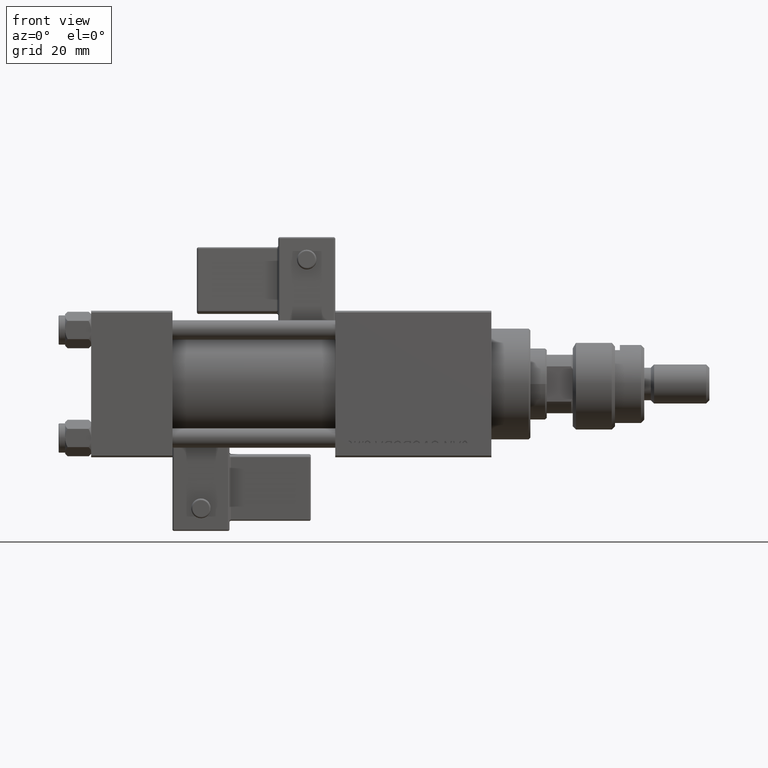
[diagram: clean part render]
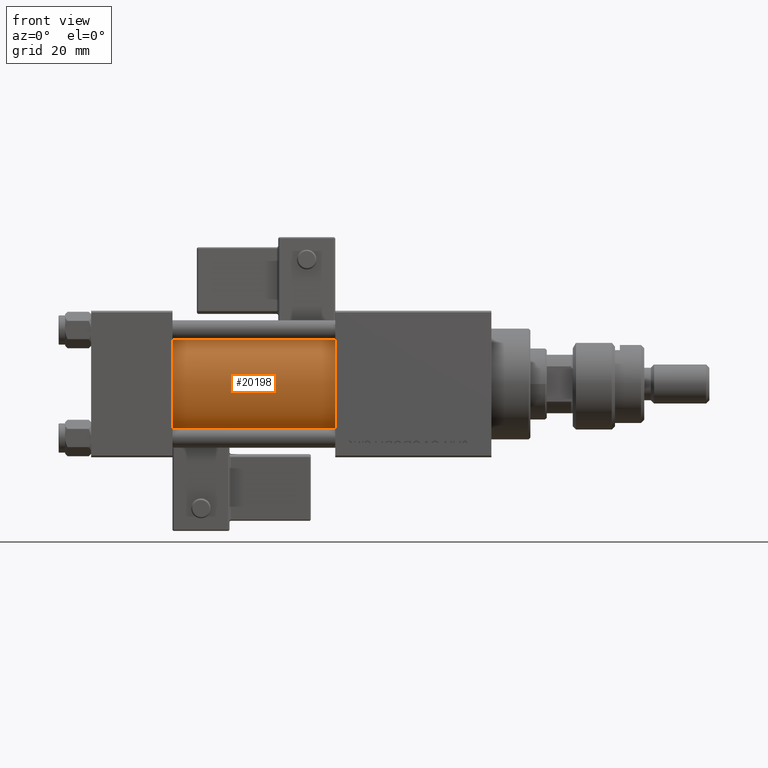
[diagram: same view with one face highlighted and labeled with its STEP entity id]
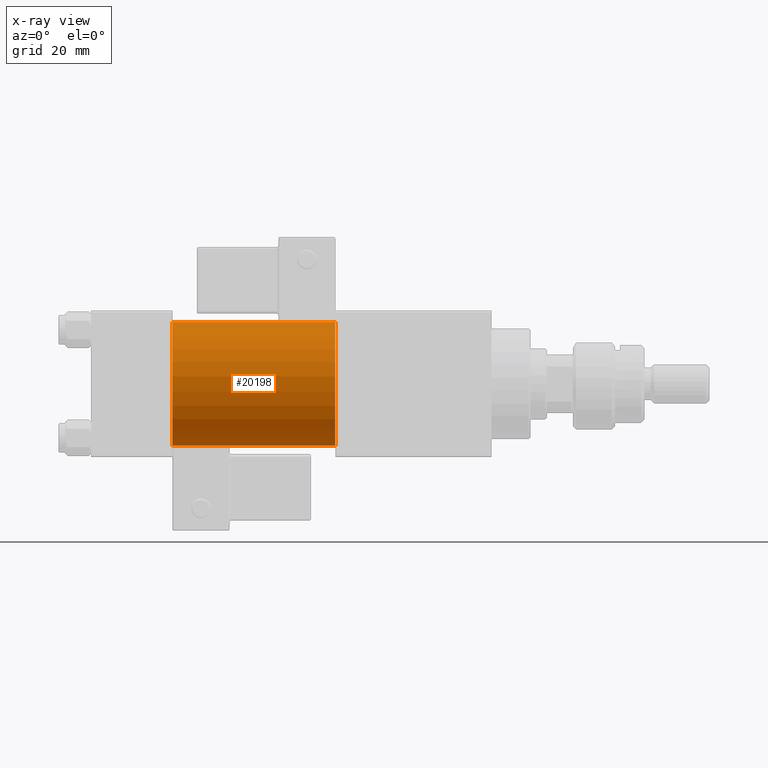
[diagram: x-ray of the same camera — body ghosted, the highlighted face saturated]
A machine part, front view. The second image highlights one B-rep face of the part: STEP entity #20198.
The next image is the same camera in x-ray: the body ghosted, the highlighted face saturated — about 0% of this face is hidden behind the body in this view.
In plain terms, the highlighted cylindrical surface (partial cylindrical patch) has radius 19 mm, axis along (-1, -0, -0).
Its self-contained STEP definition (entity closure, byte-faithful):
#2104 = CARTESIAN_POINT ( 'NONE',  ( 75.00000000000001421, -2.602085213965210642E-15, 19.00000000000000000 ) ) ;
#2373 = EDGE_CURVE ( 'NONE', #31629, #32949, #9510, .T. ) ;
#4933 = DIRECTION ( 'NONE',  ( -1.000000000000000000, -0.000000000000000000, -0.000000000000000000 ) ) ;
#5073 = AXIS2_PLACEMENT_3D ( 'NONE', #30662, #9977, #52133 ) ;
#5924 = CIRCLE ( 'NONE', #45848, 19.00000000000000000 ) ;
#6450 = CYLINDRICAL_SURFACE ( 'NONE', #5073, 19.00000000000000000 ) ;
#6528 = ORIENTED_EDGE ( 'NONE', *, *, #50005, .F. ) ;
#6804 = CARTESIAN_POINT ( 'NONE',  ( 75.00000000000001421, -2.752562955852396712E-16, -19.00000000000000000 ) ) ;
#9510 = CIRCLE ( 'NONE', #39916, 19.00000000000000000 ) ;
#9868 = DIRECTION ( 'NONE',  ( 1.000000000000000000, 0.000000000000000000, 0.000000000000000000 ) ) ;
#9977 = DIRECTION ( 'NONE',  ( -1.000000000000000000, -0.000000000000000000, -0.000000000000000000 ) ) ;
#10042 = DIRECTION ( 'NONE',  ( 1.000000000000000000, -0.000000000000000000, 0.000000000000000000 ) ) ;
#13567 = ORIENTED_EDGE ( 'NONE', *, *, #2373, .F. ) ;
#14376 = CARTESIAN_POINT ( 'NONE',  ( 25.00000000000000000, -2.752562955852396712E-16, -19.00000000000000000 ) ) ;
#16701 = VECTOR ( 'NONE', #4933, 1000.000000000000000 ) ;
#18699 = FACE_OUTER_BOUND ( 'NONE', #41120, .T. ) ;
#19810 = EDGE_CURVE ( 'NONE', #30204, #52209, #5924, .T. ) ;
#20077 = ORIENTED_EDGE ( 'NONE', *, *, #19810, .T. ) ;
#20198 = ADVANCED_FACE ( 'NONE', ( #18699 ), #6450, .T. ) ;
#21601 = CARTESIAN_POINT ( 'NONE',  ( 75.00000000000001421, -2.602085213965210642E-15, 0.000000000000000000 ) ) ;
#22064 = LINE ( 'NONE', #42174, #16701 ) ;
#22302 = DIRECTION ( 'NONE',  ( 0.000000000000000000, 0.000000000000000000, 1.000000000000000000 ) ) ;
#28584 = CARTESIAN_POINT ( 'NONE',  ( 25.00000000000000000, -2.602085213965210642E-15, 19.00000000000000000 ) ) ;
#30204 = VERTEX_POINT ( 'NONE', #28584 ) ;
#30662 = CARTESIAN_POINT ( 'NONE',  ( 75.00000000000001421, -2.602085213965210642E-15, 0.000000000000000000 ) ) ;
#31629 = VERTEX_POINT ( 'NONE', #36627 ) ;
#32949 = VERTEX_POINT ( 'NONE', #6804 ) ;
#33289 = ORIENTED_EDGE ( 'NONE', *, *, #53377, .T. ) ;
#36627 = CARTESIAN_POINT ( 'NONE',  ( 75.00000000000001421, -2.602085213965210642E-15, 19.00000000000000000 ) ) ;
#38181 = DIRECTION ( 'NONE',  ( 0.000000000000000000, 0.000000000000000000, -1.000000000000000000 ) ) ;
#39621 = LINE ( 'NONE', #2104, #49831 ) ;
#39916 = AXIS2_PLACEMENT_3D ( 'NONE', #21601, #9868, #38181 ) ;
#41120 = EDGE_LOOP ( 'NONE', ( #6528, #13567, #33289, #20077 ) ) ;
#42174 = CARTESIAN_POINT ( 'NONE',  ( 75.00000000000001421, -2.752562955852396712E-16, -19.00000000000000000 ) ) ;
#45848 = AXIS2_PLACEMENT_3D ( 'NONE', #50858, #10042, #22302 ) ;
#49831 = VECTOR ( 'NONE', #51577, 1000.000000000000000 ) ;
#50005 = EDGE_CURVE ( 'NONE', #32949, #52209, #22064, .T. ) ;
#50858 = CARTESIAN_POINT ( 'NONE',  ( 25.00000000000000000, -2.602085213965210642E-15, 0.000000000000000000 ) ) ;
#51577 = DIRECTION ( 'NONE',  ( -1.000000000000000000, -0.000000000000000000, -0.000000000000000000 ) ) ;
#52133 = DIRECTION ( 'NONE',  ( 0.000000000000000000, 0.000000000000000000, 1.000000000000000000 ) ) ;
#52209 = VERTEX_POINT ( 'NONE', #14376 ) ;
#53377 = EDGE_CURVE ( 'NONE', #31629, #30204, #39621, .T. ) ;